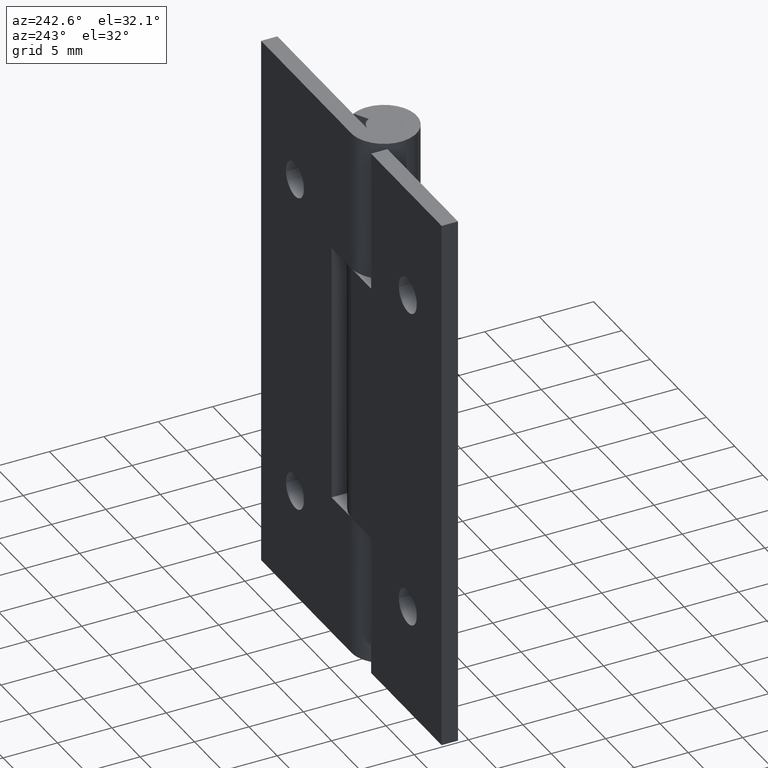
[diagram: clean part render]
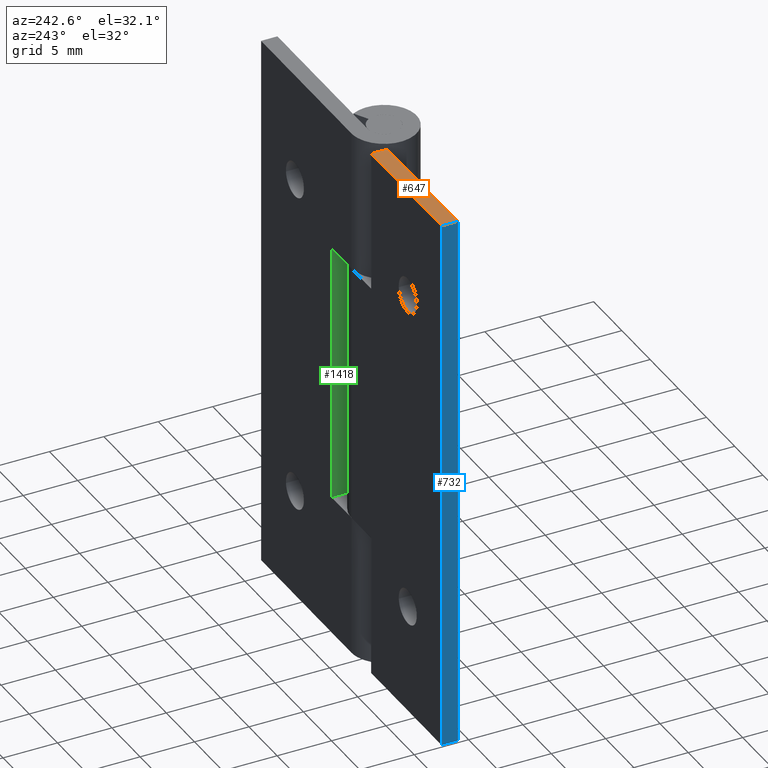
[diagram: same view with three faces highlighted in distinct colors, each labeled with its STEP entity id]
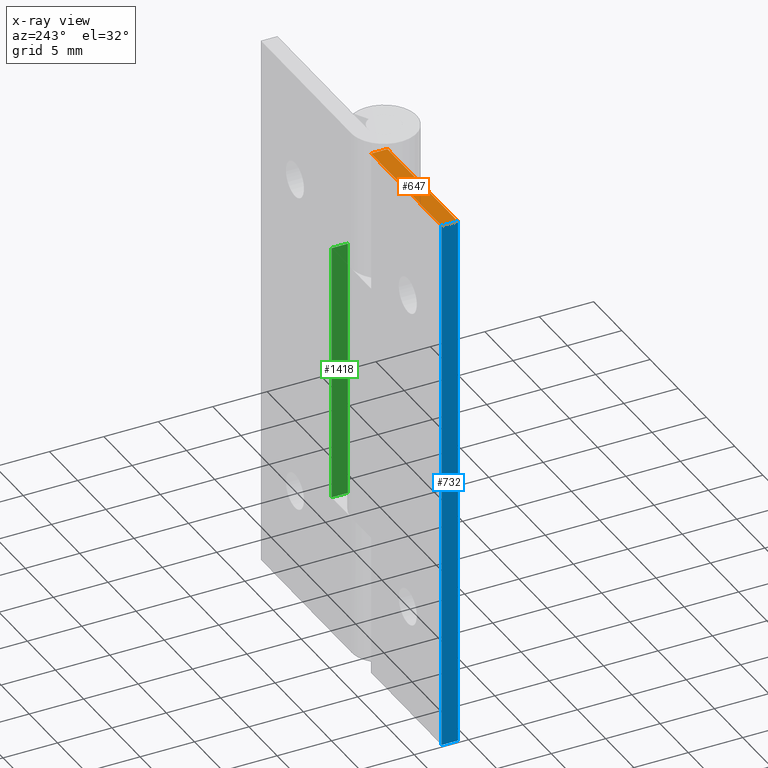
[diagram: x-ray of the same camera — body ghosted, the three highlighted faces saturated]
A machine part, auxiliary view with three faces highlighted in distinct colors.
The next image is the same camera in x-ray (body ghosted, the three faces saturated) — at least one of them is partly hidden behind the body in this view.
Their STEP definitions:

[orange] entity #647 — the highlighted face is a freeform B-spline surface patch.
#519=CARTESIAN_POINT('',(-3.500000000000100,1.499999999999946,50.0));
#520=VERTEX_POINT('',#519);
#535=CARTESIAN_POINT('',(-3.500000000000100,3.0,50.0));
#536=VERTEX_POINT('',#535);
#542=CARTESIAN_POINT('',(-3.500000000000100,1.499999999999946,50.0));
#543=CARTESIAN_POINT('',(-3.500000000000100,3.0,50.0));
#544=QUASI_UNIFORM_CURVE('',1,(#542,#543),.UNSPECIFIED.,.F.,.U.);
#545=EDGE_CURVE('',#520,#536,#544,.T.);
#620=CARTESIAN_POINT('',(-16.624374975772572,1.425075002907234,50.0));
#621=CARTESIAN_POINT('',(-2.875624688951403,1.425075002907234,50.0));
#622=CARTESIAN_POINT('',(-16.624374975772572,3.074925037325847,50.0));
#623=CARTESIAN_POINT('',(-2.875624688951403,3.074925037325847,50.0));
#624=B_SPLINE_SURFACE_WITH_KNOTS('',1,1,((#620,#622),(#621,#623)),.UNSPECIFIED.,.F.,.F.,.U.,(2,2),(2,2),(0.0,13.748750286821171),(0.041708334948495,0.958291687403247),.UNSPECIFIED.);
#625=CARTESIAN_POINT('',(-16.0,1.500000000000000,50.0));
#626=VERTEX_POINT('',#625);
#627=CARTESIAN_POINT('',(-16.0,1.500000000000000,50.0));
#628=CARTESIAN_POINT('',(-3.500000000000100,1.499999999999946,50.0));
#629=QUASI_UNIFORM_CURVE('',1,(#627,#628),.UNSPECIFIED.,.F.,.U.);
#630=EDGE_CURVE('',#626,#520,#629,.T.);
#631=ORIENTED_EDGE('',*,*,#630,.T.);
#632=ORIENTED_EDGE('',*,*,#545,.T.);
#633=CARTESIAN_POINT('',(-16.0,3.0,50.0));
#634=VERTEX_POINT('',#633);
#635=CARTESIAN_POINT('',(-3.500000000000100,3.0,50.0));
#636=CARTESIAN_POINT('',(-16.0,3.0,50.0));
#637=QUASI_UNIFORM_CURVE('',1,(#635,#636),.UNSPECIFIED.,.F.,.U.);
#638=EDGE_CURVE('',#536,#634,#637,.T.);
#639=ORIENTED_EDGE('',*,*,#638,.T.);
#640=CARTESIAN_POINT('',(-16.0,3.0,50.0));
#641=CARTESIAN_POINT('',(-16.0,1.500000000000000,50.0));
#642=QUASI_UNIFORM_CURVE('',1,(#640,#641),.UNSPECIFIED.,.F.,.U.);
#643=EDGE_CURVE('',#634,#626,#642,.T.);
#644=ORIENTED_EDGE('',*,*,#643,.T.);
#645=EDGE_LOOP('',(#631,#632,#639,#644));
#646=FACE_OUTER_BOUND('',#645,.T.);
#647=ADVANCED_FACE('',(#646),#624,.T.);

[blue] entity #732 — the highlighted face is a freeform B-spline surface patch.
#625=CARTESIAN_POINT('',(-16.0,1.500000000000000,50.0));
#626=VERTEX_POINT('',#625);
#633=CARTESIAN_POINT('',(-16.0,3.0,50.0));
#634=VERTEX_POINT('',#633);
#640=CARTESIAN_POINT('',(-16.0,3.0,50.0));
#641=CARTESIAN_POINT('',(-16.0,1.500000000000000,50.0));
#642=QUASI_UNIFORM_CURVE('',1,(#640,#641),.UNSPECIFIED.,.F.,.U.);
#643=EDGE_CURVE('',#634,#626,#642,.T.);
#654=CARTESIAN_POINT('',(-16.0,1.500000000000000,0.0));
#655=VERTEX_POINT('',#654);
#661=CARTESIAN_POINT('',(-16.0,3.0,0.0));
#662=VERTEX_POINT('',#661);
#663=CARTESIAN_POINT('',(-16.0,3.0,0.0));
#664=CARTESIAN_POINT('',(-16.0,1.500000000000000,0.0));
#665=QUASI_UNIFORM_CURVE('',1,(#663,#664),.UNSPECIFIED.,.F.,.U.);
#666=EDGE_CURVE('',#662,#655,#665,.T.);
#713=CARTESIAN_POINT('',(-16.0,1.425075002907291,-2.497499903090299));
#714=CARTESIAN_POINT('',(-16.0,1.425075002907291,52.497501244194808));
#715=CARTESIAN_POINT('',(-16.0,3.074925037325845,-2.497499903090299));
#716=CARTESIAN_POINT('',(-16.0,3.074925037325845,52.497501244194808));
#717=B_SPLINE_SURFACE_WITH_KNOTS('',1,1,((#713,#715),(#714,#716)),.UNSPECIFIED.,.F.,.F.,.U.,(2,2),(2,2),(0.0,54.995001147285109),(0.041708334948495,0.958291687403247),.UNSPECIFIED.);
#718=ORIENTED_EDGE('',*,*,#643,.F.);
#719=CARTESIAN_POINT('',(-16.0,3.0,0.0));
#720=CARTESIAN_POINT('',(-16.0,3.0,50.0));
#721=QUASI_UNIFORM_CURVE('',1,(#719,#720),.UNSPECIFIED.,.F.,.U.);
#722=EDGE_CURVE('',#662,#634,#721,.T.);
#723=ORIENTED_EDGE('',*,*,#722,.F.);
#724=ORIENTED_EDGE('',*,*,#666,.T.);
#725=CARTESIAN_POINT('',(-16.0,1.500000000000000,0.0));
#726=CARTESIAN_POINT('',(-16.0,1.500000000000000,50.0));
#727=QUASI_UNIFORM_CURVE('',1,(#725,#726),.UNSPECIFIED.,.F.,.U.);
#728=EDGE_CURVE('',#655,#626,#727,.T.);
#729=ORIENTED_EDGE('',*,*,#728,.T.);
#730=EDGE_LOOP('',(#718,#723,#724,#729));
#731=FACE_OUTER_BOUND('',#730,.T.);
#732=ADVANCED_FACE('',(#731),#717,.T.);

[green] entity #1418 — the highlighted face is a freeform B-spline surface patch.
#1248=CARTESIAN_POINT('',(3.499999999999901,1.499999999999946,13.0));
#1249=VERTEX_POINT('',#1248);
#1250=CARTESIAN_POINT('',(3.499999999999901,3.0,13.0));
#1251=VERTEX_POINT('',#1250);
#1252=CARTESIAN_POINT('',(3.499999999999901,1.499999999999946,13.0));
#1253=CARTESIAN_POINT('',(3.499999999999901,3.0,13.0));
#1254=QUASI_UNIFORM_CURVE('',1,(#1252,#1253),.UNSPECIFIED.,.F.,.U.);
#1255=EDGE_CURVE('',#1249,#1251,#1254,.T.);
#1377=CARTESIAN_POINT('',(3.499999999999901,3.0,37.0));
#1378=VERTEX_POINT('',#1377);
#1384=CARTESIAN_POINT('',(3.499999999999901,1.499999999999946,37.0));
#1385=VERTEX_POINT('',#1384);
#1386=CARTESIAN_POINT('',(3.499999999999901,1.499999999999946,37.0));
#1387=CARTESIAN_POINT('',(3.499999999999901,3.0,37.0));
#1388=QUASI_UNIFORM_CURVE('',1,(#1386,#1387),.UNSPECIFIED.,.F.,.U.);
#1389=EDGE_CURVE('',#1385,#1378,#1388,.T.);
#1399=CARTESIAN_POINT('',(3.499999999999901,1.425075002907234,38.198799953483352));
#1400=CARTESIAN_POINT('',(3.499999999999901,1.425075002907234,11.801199402786491));
#1401=CARTESIAN_POINT('',(3.499999999999901,3.074925037325847,38.198799953483352));
#1402=CARTESIAN_POINT('',(3.499999999999901,3.074925037325847,11.801199402786491));
#1403=B_SPLINE_SURFACE_WITH_KNOTS('',1,1,((#1399,#1401),(#1400,#1402)),.UNSPECIFIED.,.F.,.F.,.U.,(2,2),(2,2),(0.0,26.397600550696861),(0.041708334948495,0.958291687403247),.UNSPECIFIED.);
#1404=ORIENTED_EDGE('',*,*,#1389,.T.);
#1405=CARTESIAN_POINT('',(3.499999999999901,3.0,37.0));
#1406=CARTESIAN_POINT('',(3.499999999999901,3.0,13.0));
#1407=QUASI_UNIFORM_CURVE('',1,(#1405,#1406),.UNSPECIFIED.,.F.,.U.);
#1408=EDGE_CURVE('',#1378,#1251,#1407,.T.);
#1409=ORIENTED_EDGE('',*,*,#1408,.T.);
#1410=ORIENTED_EDGE('',*,*,#1255,.F.);
#1411=CARTESIAN_POINT('',(3.499999999999901,1.499999999999946,37.0));
#1412=CARTESIAN_POINT('',(3.499999999999901,1.499999999999946,13.0));
#1413=QUASI_UNIFORM_CURVE('',1,(#1411,#1412),.UNSPECIFIED.,.F.,.U.);
#1414=EDGE_CURVE('',#1385,#1249,#1413,.T.);
#1415=ORIENTED_EDGE('',*,*,#1414,.F.);
#1416=EDGE_LOOP('',(#1404,#1409,#1410,#1415));
#1417=FACE_OUTER_BOUND('',#1416,.T.);
#1418=ADVANCED_FACE('',(#1417),#1403,.F.);